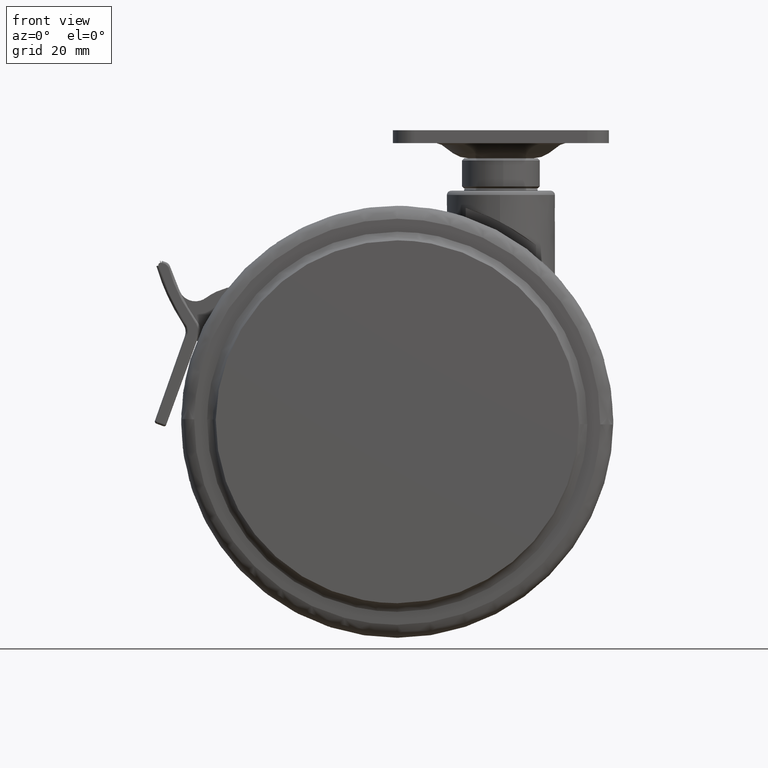
[diagram: clean part render]
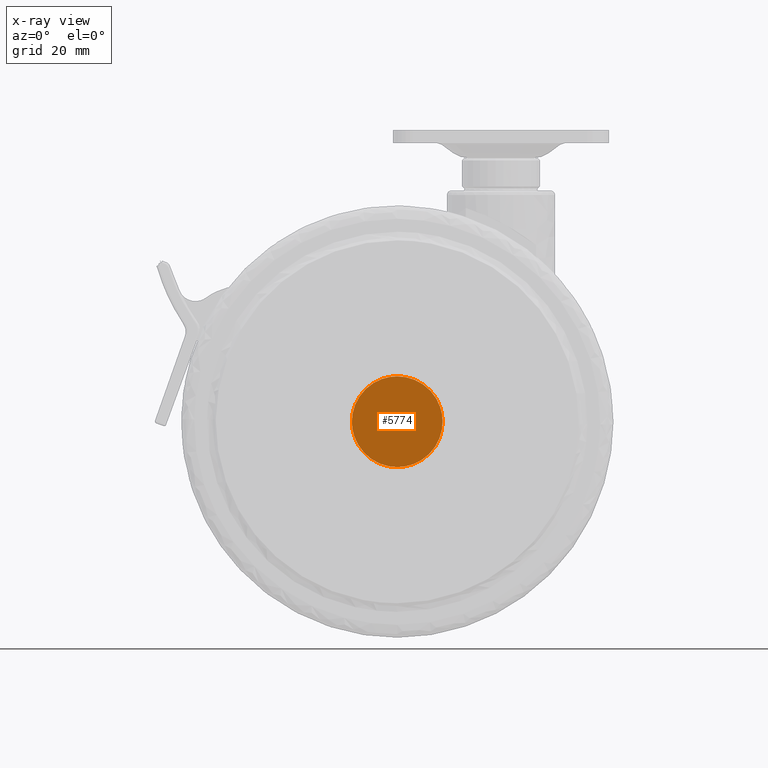
[diagram: x-ray — body ghosted, one internal face saturated and labeled with its STEP entity id]
A machine part, front view, then the same camera in x-ray: the body is ghosted and one INTERNAL B-rep face — a face not visible from any outside direction — is saturated and labeled: STEP entity #5774.
In plain terms, the highlighted face is a freeform B-spline surface patch.
Its self-contained STEP definition (entity closure, byte-faithful):
#5703=CARTESIAN_POINT('',(-12.451961895185370,8.0,-41.951050040702071));
#5704=CARTESIAN_POINT('',(-12.451961895185370,8.0,-65.048950522561810));
#5705=CARTESIAN_POINT('',(-35.548038668034053,8.0,-41.951050040702071));
#5706=CARTESIAN_POINT('',(-35.548038668034053,8.0,-65.048950522561810));
#5707=B_SPLINE_SURFACE_WITH_KNOTS('',1,1,((#5703,#5705),(#5704,#5706)),.UNSPECIFIED.,.F.,.F.,.U.,(2,2),(2,2),(0.0,23.097900481859739),(0.0,23.096076772848669),.UNSPECIFIED.);
#5708=CARTESIAN_POINT('',(-13.500829033990829,7.999999999999978,-53.368056581177768));
#5709=VERTEX_POINT('',#5708);
#5710=CARTESIAN_POINT('',(-24.0,8.0,-64.0));
#5711=VERTEX_POINT('',#5710);
#5712=CARTESIAN_POINT('',(-13.500829033990835,7.999999999999978,-53.368056581177768));
#5713=CARTESIAN_POINT('',(-13.499999998136408,7.999999999999978,-53.434025686049978));
#5714=CARTESIAN_POINT('',(-13.499999998142281,7.999999999999978,-53.499999999976659));
#5715=CARTESIAN_POINT('',(-13.499999999076977,7.999999999999989,-63.999999999988404));
#5716=CARTESIAN_POINT('',(-24.0,8.0,-64.0));
#5724=(BOUNDED_CURVE()B_SPLINE_CURVE(2,(#5712,#5713,#5714,#5715,#5716),.UNSPECIFIED.,.F.,.U.)B_SPLINE_CURVE_WITH_KNOTS((3,2,3),(0.747784295921334,0.750000000000000,1.0),.UNSPECIFIED.)CURVE()GEOMETRIC_REPRESENTATION_ITEM()RATIONAL_B_SPLINE_CURVE((0.994854295643105,0.997404141201846,1.0,0.707106781186547,1.0))REPRESENTATION_ITEM(''));
#5725=EDGE_CURVE('',#5709,#5711,#5724,.T.);
#5726=ORIENTED_EDGE('',*,*,#5725,.F.);
#5727=CARTESIAN_POINT('',(-24.0,8.0,-43.0));
#5728=VERTEX_POINT('',#5727);
#5729=CARTESIAN_POINT('',(-24.0,8.0,-43.0));
#5730=CARTESIAN_POINT('',(-13.631124735061757,7.999999999999990,-42.999999999988248));
#5731=CARTESIAN_POINT('',(-13.500829033990827,7.999999999999978,-53.368056581177768));
#5739=(BOUNDED_CURVE()B_SPLINE_CURVE(2,(#5729,#5730,#5731),.UNSPECIFIED.,.F.,.U.)B_SPLINE_CURVE_WITH_KNOTS((3,3),(0.500000000000000,0.747784295921334),.UNSPECIFIED.)CURVE()GEOMETRIC_REPRESENTATION_ITEM()RATIONAL_B_SPLINE_CURVE((1.0,0.709702639984702,0.994854295643105))REPRESENTATION_ITEM(''));
#5740=EDGE_CURVE('',#5728,#5709,#5739,.T.);
#5741=ORIENTED_EDGE('',*,*,#5740,.F.);
#5742=CARTESIAN_POINT('',(-34.499170966009167,8.000000000000021,-53.631943418822239));
#5743=VERTEX_POINT('',#5742);
#5744=CARTESIAN_POINT('',(-34.499170966009160,8.000000000000021,-53.631943418822239));
#5745=CARTESIAN_POINT('',(-34.500000001863583,8.000000000000021,-53.565974313950043));
#5746=CARTESIAN_POINT('',(-34.500000001857707,8.000000000000021,-53.500000000023348));
#5747=CARTESIAN_POINT('',(-34.500000000923016,8.000000000000011,-43.000000000011610));
#5748=CARTESIAN_POINT('',(-24.0,8.0,-43.0));
#5756=(BOUNDED_CURVE()B_SPLINE_CURVE(2,(#5744,#5745,#5746,#5747,#5748),.UNSPECIFIED.,.F.,.U.)B_SPLINE_CURVE_WITH_KNOTS((3,2,3),(0.247784295921334,0.250000000000000,0.500000000000000),.UNSPECIFIED.)CURVE()GEOMETRIC_REPRESENTATION_ITEM()RATIONAL_B_SPLINE_CURVE((0.994854295643105,0.997404141201846,1.0,0.707106781186547,1.0))REPRESENTATION_ITEM(''));
#5757=EDGE_CURVE('',#5743,#5728,#5756,.T.);
#5758=ORIENTED_EDGE('',*,*,#5757,.F.);
#5759=CARTESIAN_POINT('',(-24.0,8.0,-64.0));
#5760=CARTESIAN_POINT('',(-34.368875264938254,8.000000000000011,-64.000000000011738));
#5761=CARTESIAN_POINT('',(-34.499170966009160,8.000000000000021,-53.631943418822239));
#5769=(BOUNDED_CURVE()B_SPLINE_CURVE(2,(#5759,#5760,#5761),.UNSPECIFIED.,.F.,.U.)B_SPLINE_CURVE_WITH_KNOTS((3,3),(0.0,0.247784295921334),.UNSPECIFIED.)CURVE()GEOMETRIC_REPRESENTATION_ITEM()RATIONAL_B_SPLINE_CURVE((1.0,0.709702639984702,0.994854295643105))REPRESENTATION_ITEM(''));
#5770=EDGE_CURVE('',#5711,#5743,#5769,.T.);
#5771=ORIENTED_EDGE('',*,*,#5770,.F.);
#5772=EDGE_LOOP('',(#5726,#5741,#5758,#5771));
#5773=FACE_OUTER_BOUND('',#5772,.T.);
#5774=ADVANCED_FACE('',(#5773),#5707,.F.);